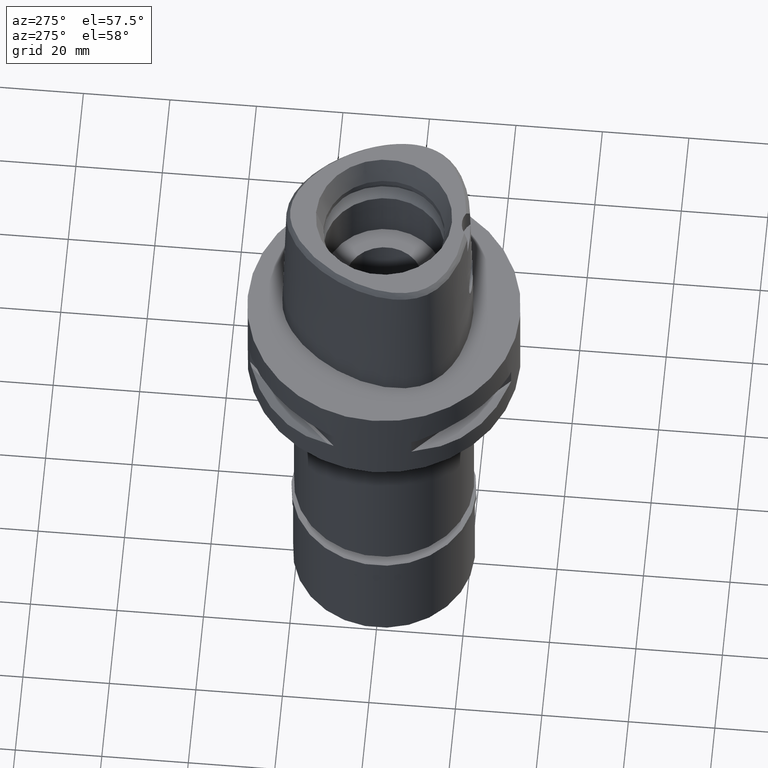
[diagram: clean part render]
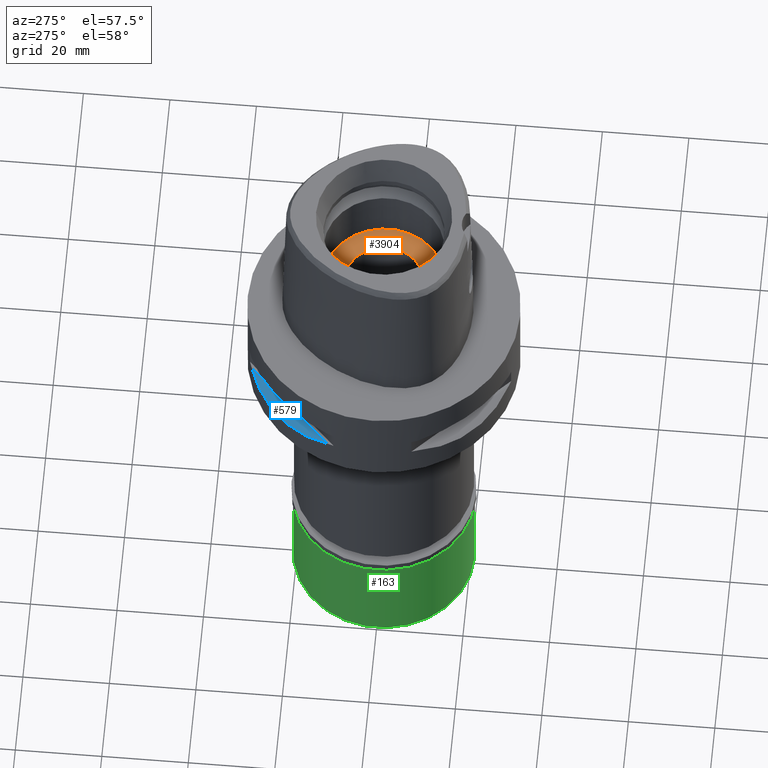
[diagram: same view with three faces highlighted in distinct colors, each labeled with its STEP entity id]
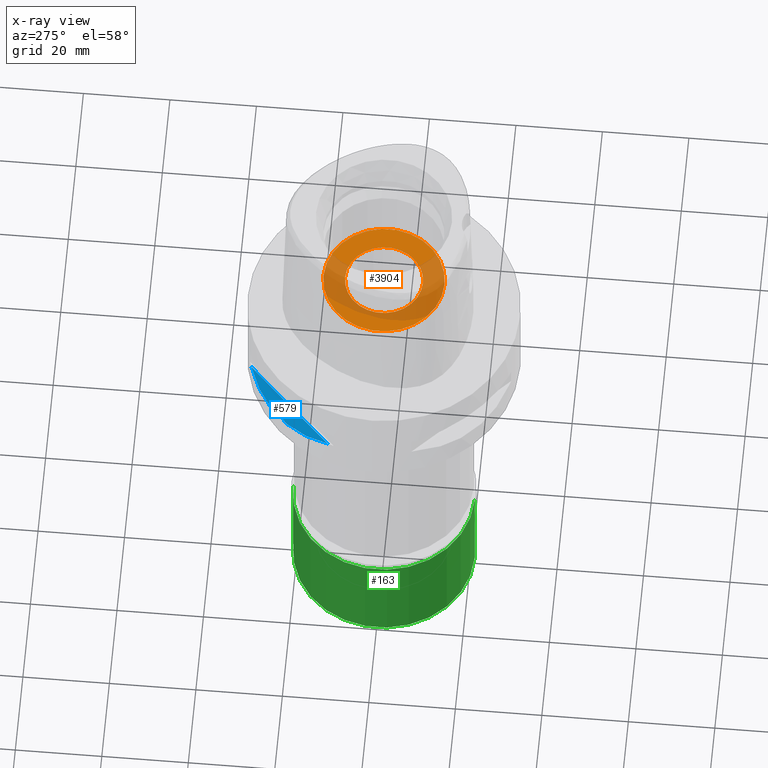
[diagram: x-ray of the same camera — body ghosted, the three highlighted faces saturated]
A machine part, auxiliary view with three faces highlighted in distinct colors.
The next image is the same camera in x-ray (body ghosted, the three faces saturated) — at least one of them is partly hidden behind the body in this view.
Their STEP definitions:

[orange] entity #3904 — the highlighted planar face has unit normal (0, 0, -1).
#1 = DIRECTION ( 'NONE',  ( 0.0000000000000000000, 1.000000000000000000, 0.0000000000000000000 ) ) ;
#22 = CIRCLE ( 'NONE', #410, 9.000000000000000000 ) ;
#407 = DIRECTION ( 'NONE',  ( 0.0000000000000000000, -1.000000000000000000, 0.0000000000000000000 ) ) ;
#410 = AXIS2_PLACEMENT_3D ( 'NONE', #1239, #2685, #1 ) ;
#451 = EDGE_CURVE ( 'NONE', #640, #2620, #22, .T. ) ;
#485 = FACE_OUTER_BOUND ( 'NONE', #612, .T. ) ;
#505 = EDGE_LOOP ( 'NONE', ( #1398, #2057 ) ) ;
#570 = DIRECTION ( 'NONE',  ( 0.0000000000000000000, -1.000000000000000000, 0.0000000000000000000 ) ) ;
#612 = EDGE_LOOP ( 'NONE', ( #1726, #3445 ) ) ;
#640 = VERTEX_POINT ( 'NONE', #2877 ) ;
#993 = CIRCLE ( 'NONE', #4717, 9.000000000000000000 ) ;
#1170 = VERTEX_POINT ( 'NONE', #3918 ) ;
#1239 = CARTESIAN_POINT ( 'NONE',  ( 0.0000000000000000000, 0.0000000000000000000, 11.00000000000000000 ) ) ;
#1260 = FACE_BOUND ( 'NONE', #505, .T. ) ;
#1398 = ORIENTED_EDGE ( 'NONE', *, *, #3567, .F. ) ;
#1500 = CARTESIAN_POINT ( 'NONE',  ( 0.0000000000000000000, -14.00000000000000000, 11.00000000000000000 ) ) ;
#1577 = PLANE ( 'NONE',  #4244 ) ;
#1726 = ORIENTED_EDGE ( 'NONE', *, *, #3278, .F. ) ;
#1780 = CARTESIAN_POINT ( 'NONE',  ( 0.0000000000000000000, 0.0000000000000000000, 11.00000000000000000 ) ) ;
#1805 = DIRECTION ( 'NONE',  ( 0.0000000000000000000, 1.000000000000000000, 0.0000000000000000000 ) ) ;
#1914 = AXIS2_PLACEMENT_3D ( 'NONE', #4520, #3769, #1805 ) ;
#1975 = CARTESIAN_POINT ( 'NONE',  ( 0.0000000000000000000, 0.0000000000000000000, 11.00000000000000000 ) ) ;
#2003 = DIRECTION ( 'NONE',  ( 0.0000000000000000000, 0.0000000000000000000, -1.000000000000000000 ) ) ;
#2057 = ORIENTED_EDGE ( 'NONE', *, *, #451, .F. ) ;
#2157 = CIRCLE ( 'NONE', #1914, 14.00000000000000000 ) ;
#2295 = DIRECTION ( 'NONE',  ( 0.0000000000000000000, 0.0000000000000000000, 1.000000000000000000 ) ) ;
#2348 = CIRCLE ( 'NONE', #3874, 14.00000000000000000 ) ;
#2620 = VERTEX_POINT ( 'NONE', #4165 ) ;
#2685 = DIRECTION ( 'NONE',  ( 0.0000000000000000000, 0.0000000000000000000, 1.000000000000000000 ) ) ;
#2711 = DIRECTION ( 'NONE',  ( 0.0000000000000000000, -1.000000000000000000, 0.0000000000000000000 ) ) ;
#2877 = CARTESIAN_POINT ( 'NONE',  ( 0.0000000000000000000, 9.000000000000000000, 11.00000000000000000 ) ) ;
#3278 = EDGE_CURVE ( 'NONE', #3354, #1170, #2348, .T. ) ;
#3317 = DIRECTION ( 'NONE',  ( 0.0000000000000000000, 0.0000000000000000000, -1.000000000000000000 ) ) ;
#3354 = VERTEX_POINT ( 'NONE', #1500 ) ;
#3445 = ORIENTED_EDGE ( 'NONE', *, *, #3689, .F. ) ;
#3567 = EDGE_CURVE ( 'NONE', #2620, #640, #993, .T. ) ;
#3689 = EDGE_CURVE ( 'NONE', #1170, #3354, #2157, .T. ) ;
#3769 = DIRECTION ( 'NONE',  ( 0.0000000000000000000, 0.0000000000000000000, -1.000000000000000000 ) ) ;
#3874 = AXIS2_PLACEMENT_3D ( 'NONE', #1780, #3317, #570 ) ;
#3904 = ADVANCED_FACE ( 'NONE', ( #485, #1260 ), #1577, .F. ) ;
#3918 = CARTESIAN_POINT ( 'NONE',  ( 0.0000000000000000000, 14.00000000000000000, 11.00000000000000000 ) ) ;
#4165 = CARTESIAN_POINT ( 'NONE',  ( 0.0000000000000000000, -9.000000000000000000, 11.00000000000000000 ) ) ;
#4244 = AXIS2_PLACEMENT_3D ( 'NONE', #1975, #2003, #2711 ) ;
#4520 = CARTESIAN_POINT ( 'NONE',  ( 0.0000000000000000000, 0.0000000000000000000, 11.00000000000000000 ) ) ;
#4717 = AXIS2_PLACEMENT_3D ( 'NONE', #4726, #2295, #407 ) ;
#4726 = CARTESIAN_POINT ( 'NONE',  ( 0.0000000000000000000, 0.0000000000000000000, 11.00000000000000000 ) ) ;

[blue] entity #579 — the highlighted planar face has unit normal (0.3536, -0.3536, -0.866).
#114 = CARTESIAN_POINT ( 'NONE',  ( -16.48208282229953880, 26.84474411198595689, -15.34094883778485041 ) ) ;
#139 = CARTESIAN_POINT ( 'NONE',  ( -16.89910283486671361, 26.58330558444672675, -15.40446471307534004 ) ) ;
#155 = EDGE_CURVE ( 'NONE', #2433, #3945, #3711, .T. ) ;
#166 = CARTESIAN_POINT ( 'NONE',  ( -26.52527364208796712, 16.98999780422226635, -15.41788098766625659 ) ) ;
#262 = CARTESIAN_POINT ( 'NONE',  ( -10.44775724750000023, 29.71690375017999841, -14.05000000000000071 ) ) ;
#360 = ORIENTED_EDGE ( 'NONE', *, *, #2332, .T. ) ;
#500 = CARTESIAN_POINT ( 'NONE',  ( -16.86571563436942256, 26.60451452154885033, -15.39949295786344408 ) ) ;
#526 = CARTESIAN_POINT ( 'NONE',  ( -26.29071741524037265, 17.35163608579741634, -15.46976201925743055 ) ) ;
#579 = ADVANCED_FACE ( 'NONE', ( #1772 ), #2802, .F. ) ;
#614 = ORIENTED_EDGE ( 'NONE', *, *, #155, .F. ) ;
#648 = CARTESIAN_POINT ( 'NONE',  ( -28.91382665369093630, 12.73197616787454578, -14.65467361753829323 ) ) ;
#771 = EDGE_LOOP ( 'NONE', ( #614, #360 ) ) ;
#868 = CARTESIAN_POINT ( 'NONE',  ( -10.44775724750000023, 29.71690375017999841, -14.05000000000000071 ) ) ;
#994 = CARTESIAN_POINT ( 'NONE',  ( -29.71690375017999841, 10.44775724750000023, -14.05000000000000071 ) ) ;
#1133 = B_SPLINE_CURVE_WITH_KNOTS ( 'NONE', 3,
 ( #868, #3115, #1219, #3557, #4353, #114, #4701, #3950, #500, #139, #1669, #2746, #1297, #2447, #3223, #3976, #526, #2067, #3612, #166, #2136, #4398, #648, #994 ),
 .UNSPECIFIED., .F., .F.,
 ( 4, 1, 1, 1, 1, 1, 2, 2, 2, 1, 1, 1, 1, 1, 2, 2, 4 ),
 ( 0.0000000000000000000, 0.1249999999999933942, 0.1874999999999900913, 0.2187499999999883982, 0.2343749999999875655, 0.2421874999999871492, 0.2460937499999869271, 0.2499999999999867328, 0.4999999999999860112, 0.6249999999999854561, 0.6874999999999854561, 0.7187499999999855671, 0.7343749999999857891, 0.7421874999999859002, 0.7460937499999860112, 0.7499999999999861222, 1.000000000000000000 ),
 .UNSPECIFIED. ) ;
#1219 = CARTESIAN_POINT ( 'NONE',  ( -13.25636937907522750, 28.62019653467492830, -14.74888225542484399 ) ) ;
#1297 = CARTESIAN_POINT ( 'NONE',  ( -23.08532645888766055, 21.46242677077792393, -15.83938991065621238 ) ) ;
#1669 = CARTESIAN_POINT ( 'NONE',  ( -18.86897208077244059, 25.32725744464587336, -15.69588095933971772 ) ) ;
#1772 = FACE_OUTER_BOUND ( 'NONE', #771, .T. ) ;
#1777 = VECTOR ( 'NONE', #4872, 1000.000000000000114 ) ;
#2067 = CARTESIAN_POINT ( 'NONE',  ( -26.42800887047799563, 17.14106442934821573, -15.43984550238794462 ) ) ;
#2136 = CARTESIAN_POINT ( 'NONE',  ( -26.54368690921824125, 16.96123479565122238, -15.41365572341632095 ) ) ;
#2332 = EDGE_CURVE ( 'NONE', #2433, #3945, #1133, .T. ) ;
#2433 = VERTEX_POINT ( 'NONE', #2940 ) ;
#2447 = CARTESIAN_POINT ( 'NONE',  ( -24.23018836746388516, 20.18579225685454404, -15.78559396979325946 ) ) ;
#2746 = CARTESIAN_POINT ( 'NONE',  ( -20.65093790435075860, 23.89673728057023183, -15.83935804902264444 ) ) ;
#2802 = PLANE ( 'NONE',  #4100 ) ;
#2831 = DIRECTION ( 'NONE',  ( 0.3535533905933054277, -0.3535533905933049836, -0.8660254037844130615 ) ) ;
#2940 = CARTESIAN_POINT ( 'NONE',  ( -10.44775724750000023, 29.71690375017999841, -14.05000000000000071 ) ) ;
#3115 = CARTESIAN_POINT ( 'NONE',  ( -11.58970337496597658, 29.31542262583877800, -14.35229357167647635 ) ) ;
#3223 = CARTESIAN_POINT ( 'NONE',  ( -25.43927894892473418, 18.59229662064630517, -15.62866126334695061 ) ) ;
#3557 = CARTESIAN_POINT ( 'NONE',  ( -15.11986997312707004, 27.64634172017413860, -15.11207862404499203 ) ) ;
#3590 = CARTESIAN_POINT ( 'NONE',  ( -32.45669916960000023, 7.707961828074000543, -14.05000000000000071 ) ) ;
#3612 = CARTESIAN_POINT ( 'NONE',  ( -26.48642424310701671, 17.05047092244375406, -15.42670883407967786 ) ) ;
#3711 = LINE ( 'NONE', #262, #1777 ) ;
#3945 = VERTEX_POINT ( 'NONE', #4643 ) ;
#3950 = CARTESIAN_POINT ( 'NONE',  ( -16.80193241490983524, 26.64486562695853422, -15.38992683736061551 ) ) ;
#3976 = CARTESIAN_POINT ( 'NONE',  ( -26.01217882835230810, 17.76952662671778427, -15.52665221626391556 ) ) ;
#4028 = DIRECTION ( 'NONE',  ( 0.0000000000000000000, -0.9258200997725358761, 0.3779644730092654448 ) ) ;
#4100 = AXIS2_PLACEMENT_3D ( 'NONE', #3590, #2831, #4028 ) ;
#4353 = CARTESIAN_POINT ( 'NONE',  ( -16.03138450080076893, 27.11872488588798191, -15.26880420108349234 ) ) ;
#4398 = CARTESIAN_POINT ( 'NONE',  ( -27.86285265926828814, 14.89252659056578487, -15.10765629751800354 ) ) ;
#4643 = CARTESIAN_POINT ( 'NONE',  ( -29.71690375017999841, 10.44775724750000023, -14.05000000000000071 ) ) ;
#4701 = CARTESIAN_POINT ( 'NONE',  ( -16.70616724746441761, 26.70521063584523347, -15.37546661818105953 ) ) ;
#4872 = DIRECTION ( 'NONE',  ( -0.7071067811865474617, -0.7071067811865474617, 0.0000000000000000000 ) ) ;

[green] entity #163 — the highlighted cylindrical surface (partial cylindrical patch) has radius 21 mm, axis along (0, 0, -1).
#11 = CARTESIAN_POINT ( 'NONE',  ( 0.0000000000000000000, -21.00000000000000000, -2.299999999999999822 ) ) ;
#163 = ADVANCED_FACE ( 'NONE', ( #4583 ), #4174, .T. ) ;
#301 = EDGE_CURVE ( 'NONE', #4655, #934, #4350, .T. ) ;
#323 = DIRECTION ( 'NONE',  ( 0.0000000000000000000, 0.0000000000000000000, 1.000000000000000000 ) ) ;
#592 = ORIENTED_EDGE ( 'NONE', *, *, #915, .T. ) ;
#911 = AXIS2_PLACEMENT_3D ( 'NONE', #3080, #1197, #2700 ) ;
#915 = EDGE_CURVE ( 'NONE', #934, #1148, #2876, .T. ) ;
#934 = VERTEX_POINT ( 'NONE', #4356 ) ;
#1106 = EDGE_CURVE ( 'NONE', #1148, #3312, #1858, .T. ) ;
#1148 = VERTEX_POINT ( 'NONE', #3947 ) ;
#1197 = DIRECTION ( 'NONE',  ( 0.0000000000000000000, 0.0000000000000000000, -1.000000000000000000 ) ) ;
#1363 = CARTESIAN_POINT ( 'NONE',  ( 0.0000000000000000000, 21.00000000000000000, -2.299999999999999822 ) ) ;
#1383 = AXIS2_PLACEMENT_3D ( 'NONE', #2562, #323, #2162 ) ;
#1626 = VECTOR ( 'NONE', #4767, 1000.000000000000000 ) ;
#1794 = ORIENTED_EDGE ( 'NONE', *, *, #301, .T. ) ;
#1858 = CIRCLE ( 'NONE', #1383, 21.00000000000000000 ) ;
#1985 = CARTESIAN_POINT ( 'NONE',  ( 0.0000000000000000000, 0.0000000000000000000, -2.299999999999999822 ) ) ;
#2162 = DIRECTION ( 'NONE',  ( 0.0000000000000000000, 1.000000000000000000, 0.0000000000000000000 ) ) ;
#2184 = CARTESIAN_POINT ( 'NONE',  ( 0.0000000000000000000, -21.00000000000000000, -27.09999999999999787 ) ) ;
#2255 = AXIS2_PLACEMENT_3D ( 'NONE', #1985, #2391, #4674 ) ;
#2391 = DIRECTION ( 'NONE',  ( 0.0000000000000000000, 0.0000000000000000000, -1.000000000000000000 ) ) ;
#2562 = CARTESIAN_POINT ( 'NONE',  ( 0.0000000000000000000, 0.0000000000000000000, -27.09999999999999787 ) ) ;
#2700 = DIRECTION ( 'NONE',  ( 0.0000000000000000000, -1.000000000000000000, 0.0000000000000000000 ) ) ;
#2830 = DIRECTION ( 'NONE',  ( 0.0000000000000000000, 0.0000000000000000000, -1.000000000000000000 ) ) ;
#2876 = LINE ( 'NONE', #1363, #3949 ) ;
#2888 = LINE ( 'NONE', #2958, #1626 ) ;
#2958 = CARTESIAN_POINT ( 'NONE',  ( 0.0000000000000000000, -21.00000000000000000, -2.299999999999999822 ) ) ;
#2995 = ORIENTED_EDGE ( 'NONE', *, *, #3343, .F. ) ;
#3080 = CARTESIAN_POINT ( 'NONE',  ( 0.0000000000000000000, 0.0000000000000000000, 0.0000000000000000000 ) ) ;
#3262 = EDGE_LOOP ( 'NONE', ( #4095, #2995, #1794, #592 ) ) ;
#3312 = VERTEX_POINT ( 'NONE', #2184 ) ;
#3343 = EDGE_CURVE ( 'NONE', #4655, #3312, #2888, .T. ) ;
#3947 = CARTESIAN_POINT ( 'NONE',  ( 0.0000000000000000000, 21.00000000000000000, -27.09999999999999787 ) ) ;
#3949 = VECTOR ( 'NONE', #2830, 1000.000000000000000 ) ;
#4095 = ORIENTED_EDGE ( 'NONE', *, *, #1106, .T. ) ;
#4174 = CYLINDRICAL_SURFACE ( 'NONE', #911, 21.00000000000000000 ) ;
#4350 = CIRCLE ( 'NONE', #2255, 21.00000000000000000 ) ;
#4356 = CARTESIAN_POINT ( 'NONE',  ( 0.0000000000000000000, 21.00000000000000000, -2.299999999999999822 ) ) ;
#4583 = FACE_OUTER_BOUND ( 'NONE', #3262, .T. ) ;
#4655 = VERTEX_POINT ( 'NONE', #11 ) ;
#4674 = DIRECTION ( 'NONE',  ( 0.0000000000000000000, -1.000000000000000000, 0.0000000000000000000 ) ) ;
#4767 = DIRECTION ( 'NONE',  ( 0.0000000000000000000, 0.0000000000000000000, -1.000000000000000000 ) ) ;